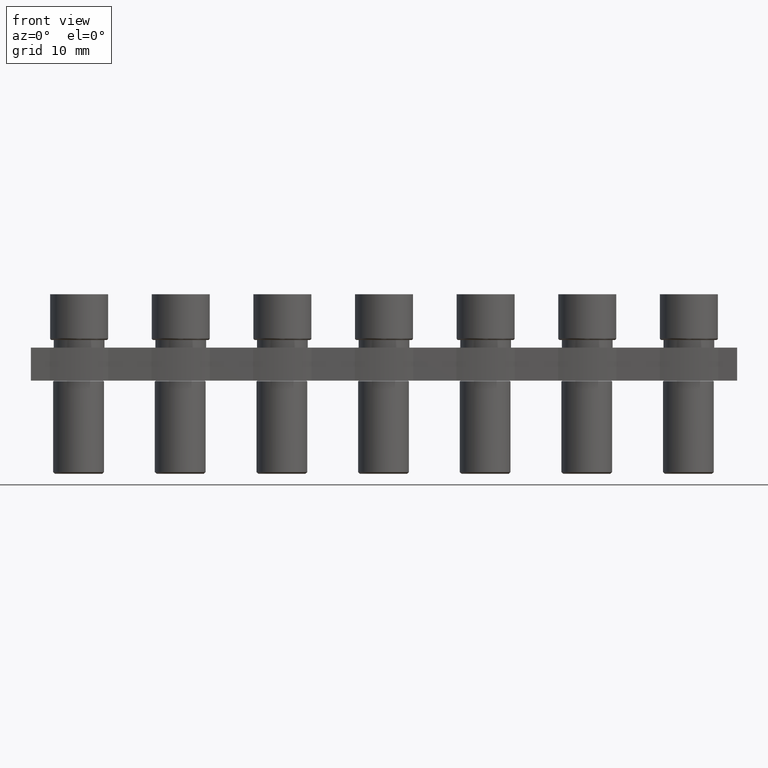
[diagram: clean part render]
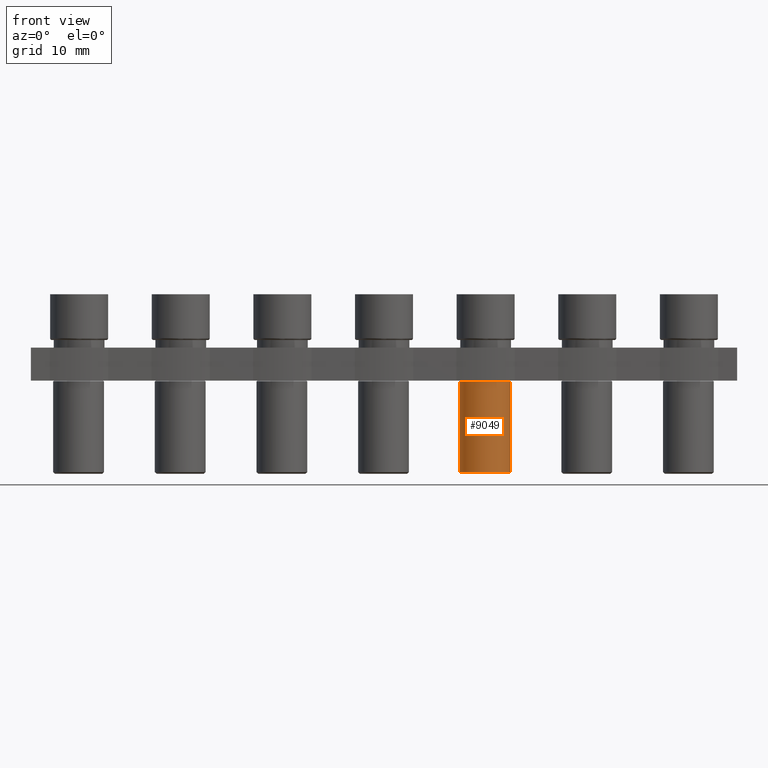
[diagram: same view with one face highlighted and labeled with its STEP entity id]
A machine part, front view. The second image highlights one B-rep face of the part: STEP entity #9049.
In plain terms, the highlighted cylindrical surface (edge-blend (fillet) strip) has radius 3 mm, axis along (-0, -0, -1).
Its self-contained STEP definition (entity closure, byte-faithful):
#1300 = EDGE_LOOP ( 'NONE', ( #1998, #2042, #1955, #1964, #2041 ) ) ;
#1955 = ORIENTED_EDGE ( 'NONE', *, *, #8491, .T. ) ;
#1964 = ORIENTED_EDGE ( 'NONE', *, *, #8546, .T. ) ;
#1998 = ORIENTED_EDGE ( 'NONE', *, *, #8468, .F. ) ;
#2041 = ORIENTED_EDGE ( 'NONE', *, *, #8473, .T. ) ;
#2042 = ORIENTED_EDGE ( 'NONE', *, *, #8552, .F. ) ;
#2280 = VERTEX_POINT ( 'NONE', #4947 ) ;
#2283 = VERTEX_POINT ( 'NONE', #4978 ) ;
#2290 = VERTEX_POINT ( 'NONE', #4954 ) ;
#2323 = VERTEX_POINT ( 'NONE', #5014 ) ;
#2327 = VERTEX_POINT ( 'NONE', #5059 ) ;
#3566 = AXIS2_PLACEMENT_3D ( 'NONE', #7882, #7860, #7821 ) ;
#3590 = VECTOR ( 'NONE', #7874, 1000.000000000000000 ) ;
#3595 = CIRCLE ( 'NONE', #3566, 2.999999999999999100 ) ;
#3662 = VECTOR ( 'NONE', #7969, 1000.000000000000000 ) ;
#3698 = AXIS2_PLACEMENT_3D ( 'NONE', #8211, #8183, #8182 ) ;
#3715 = AXIS2_PLACEMENT_3D ( 'NONE', #8190, #8179, #8196 ) ;
#3738 = CIRCLE ( 'NONE', #3698, 2.999999999992139200 ) ;
#3742 = CIRCLE ( 'NONE', #3715, 2.999999999999999100 ) ;
#4947 = CARTESIAN_POINT ( 'NONE',  ( -9.061677606596992600, -1.921897426750042200E-015, -4.900000000077398000 ) ) ;
#4954 = CARTESIAN_POINT ( 'NONE',  ( -12.06167760658913000, -2.999999999911693700, -15.60000000008048600 ) ) ;
#4978 = CARTESIAN_POINT ( 'NONE',  ( -9.061677606589132200, -1.921897426749560600E-015, -15.60000000008048600 ) ) ;
#5014 = CARTESIAN_POINT ( 'NONE',  ( -15.06167760658127000, -2.289291466493766400E-015, -4.900000000077398000 ) ) ;
#5059 = CARTESIAN_POINT ( 'NONE',  ( -15.06167760658913000, -2.289291466493766400E-015, -15.60000000008048600 ) ) ;
#7370 = AXIS2_PLACEMENT_3D ( 'NONE', #9992, #9994, #9969 ) ;
#7791 = LINE ( 'NONE', #7865, #3590 ) ;
#7821 = DIRECTION ( 'NONE',  ( -1.000000000000000000, 0.0000000000000000000, 0.0000000000000000000 ) ) ;
#7860 = DIRECTION ( 'NONE',  ( 0.0000000000000000000, 0.0000000000000000000, 1.000000000000000000 ) ) ;
#7865 = CARTESIAN_POINT ( 'NONE',  ( -9.061677606589132200, -1.921897426749560600E-015, -4.800000000080492800 ) ) ;
#7874 = DIRECTION ( 'NONE',  ( -0.0000000000000000000, -0.0000000000000000000, -1.000000000000000000 ) ) ;
#7882 = CARTESIAN_POINT ( 'NONE',  ( -12.06167760658913000, -2.289291466493766400E-015, -15.60000000008048600 ) ) ;
#7899 = LINE ( 'NONE', #7907, #3662 ) ;
#7907 = CARTESIAN_POINT ( 'NONE',  ( -15.06167760658913000, -2.289291466493766400E-015, -4.800000000080492800 ) ) ;
#7969 = DIRECTION ( 'NONE',  ( -0.0000000000000000000, -0.0000000000000000000, -1.000000000000000000 ) ) ;
#8179 = DIRECTION ( 'NONE',  ( 0.0000000000000000000, 0.0000000000000000000, 1.000000000000000000 ) ) ;
#8182 = DIRECTION ( 'NONE',  ( -1.000000000000000000, 0.0000000000000000000, 0.0000000000000000000 ) ) ;
#8183 = DIRECTION ( 'NONE',  ( -0.0000000000000000000, -0.0000000000000000000, 1.000000000000000000 ) ) ;
#8190 = CARTESIAN_POINT ( 'NONE',  ( -12.06167760658913000, -2.289291466493766400E-015, -15.60000000008048600 ) ) ;
#8196 = DIRECTION ( 'NONE',  ( -1.000000000000000000, 0.0000000000000000000, 0.0000000000000000000 ) ) ;
#8211 = CARTESIAN_POINT ( 'NONE',  ( -12.06167760658913000, -2.289291466493766400E-015, -4.900000000077398000 ) ) ;
#8468 = EDGE_CURVE ( 'NONE', #2280, #2283, #7791, .T. ) ;
#8473 = EDGE_CURVE ( 'NONE', #2290, #2283, #3595, .T. ) ;
#8491 = EDGE_CURVE ( 'NONE', #2323, #2327, #7899, .T. ) ;
#8546 = EDGE_CURVE ( 'NONE', #2327, #2290, #3742, .T. ) ;
#8552 = EDGE_CURVE ( 'NONE', #2323, #2280, #3738, .T. ) ;
#9049 = ADVANCED_FACE ( 'NONE', ( #10004 ), #9980, .T. ) ;
#9969 = DIRECTION ( 'NONE',  ( -1.000000000000000000, 0.0000000000000000000, 0.0000000000000000000 ) ) ;
#9980 = CYLINDRICAL_SURFACE ( 'NONE', #7370, 2.999999999999999100 ) ;
#9992 = CARTESIAN_POINT ( 'NONE',  ( -12.06167760658913000, -2.289291466493766400E-015, -4.800000000080492800 ) ) ;
#9994 = DIRECTION ( 'NONE',  ( -0.0000000000000000000, -0.0000000000000000000, -1.000000000000000000 ) ) ;
#10004 = FACE_OUTER_BOUND ( 'NONE', #1300, .T. ) ;